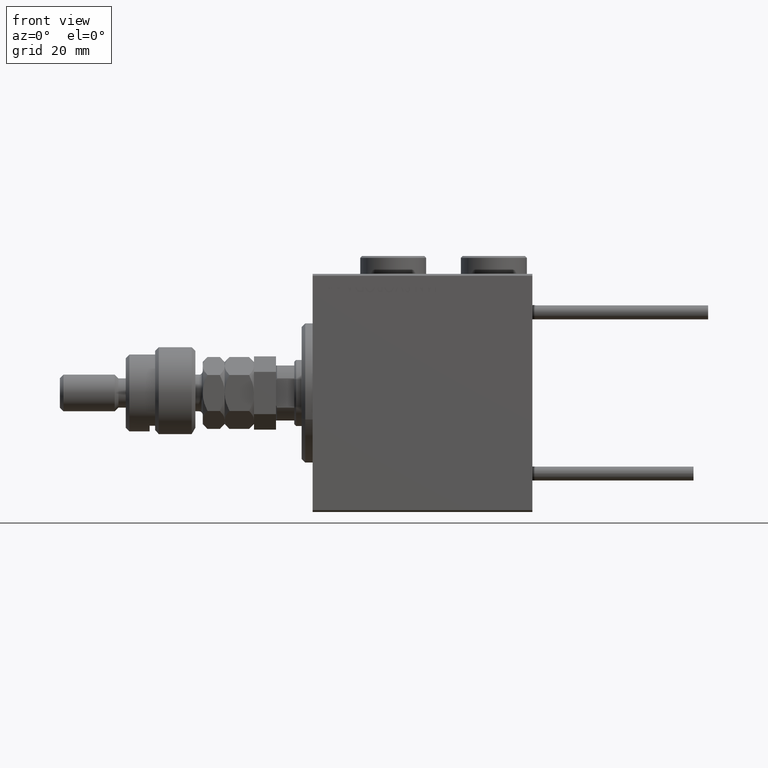
[diagram: clean part render]
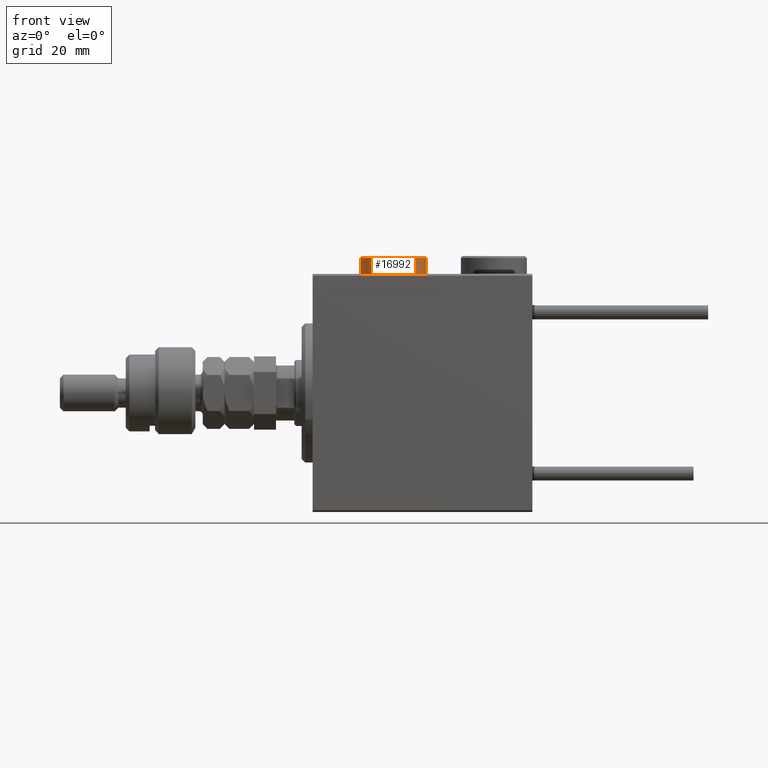
[diagram: same view with one face highlighted and labeled with its STEP entity id]
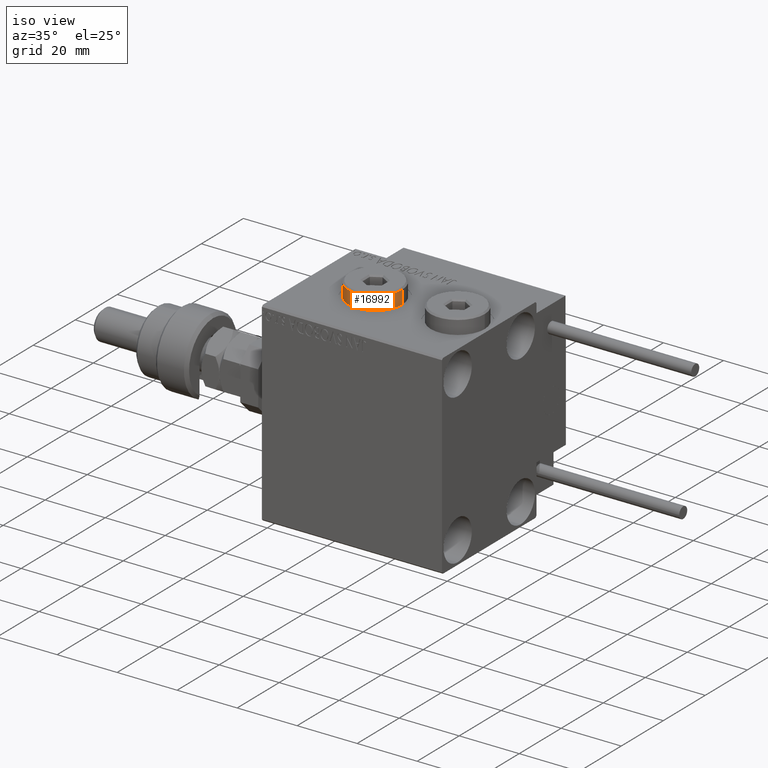
[diagram: same view with one face highlighted and labeled with its STEP entity id]
A machine part, front view. The second image highlights one B-rep face of the part: STEP entity #16992.
A second angle (iso view) of the same face is appended — the face is thin or edge-on in the first view.
In plain terms, the highlighted cylindrical surface (edge-blend (fillet) strip) has radius 9 mm, axis along (-0, -0, -1).
Its self-contained STEP definition (entity closure, byte-faithful):
#235 = EDGE_CURVE ( 'NONE', #34763, #1009, #22693, .T. ) ;
#1009 = VERTEX_POINT ( 'NONE', #27879 ) ;
#3549 = DIRECTION ( 'NONE',  ( 1.000000000000000000, 0.000000000000000000, 0.000000000000000000 ) ) ;
#7491 = LINE ( 'NONE', #7755, #10532 ) ;
#7755 = CARTESIAN_POINT ( 'NONE',  ( -9.000000000000001776, 0.000000000000000000, 5.000000000000000000 ) ) ;
#9200 = AXIS2_PLACEMENT_3D ( 'NONE', #37571, #45572, #32918 ) ;
#10532 = VECTOR ( 'NONE', #35767, 1000.000000000000000 ) ;
#12711 = EDGE_LOOP ( 'NONE', ( #41212, #51748, #16448, #30434 ) ) ;
#13055 = FACE_OUTER_BOUND ( 'NONE', #12711, .T. ) ;
#13323 = DIRECTION ( 'NONE',  ( -1.000000000000000000, 0.000000000000000000, 0.000000000000000000 ) ) ;
#16448 = ORIENTED_EDGE ( 'NONE', *, *, #40122, .T. ) ;
#16992 = ADVANCED_FACE ( 'NONE', ( #13055 ), #29827, .T. ) ;
#17392 = EDGE_CURVE ( 'NONE', #34763, #22337, #23338, .T. ) ;
#19163 = VECTOR ( 'NONE', #39818, 1000.000000000000000 ) ;
#19203 = CARTESIAN_POINT ( 'NONE',  ( 9.000000000000001776, 1.102182119232617911E-15, 5.000000000000000000 ) ) ;
#19259 = CARTESIAN_POINT ( 'NONE',  ( 9.000000000000001776, 1.102182119232617911E-15, 0.000000000000000000 ) ) ;
#22337 = VERTEX_POINT ( 'NONE', #19259 ) ;
#22693 = CIRCLE ( 'NONE', #26204, 9.000000000000001776 ) ;
#23140 = CARTESIAN_POINT ( 'NONE',  ( 9.000000000000001776, 1.102182119232617911E-15, 4.500000000000006217 ) ) ;
#23338 = LINE ( 'NONE', #19203, #19163 ) ;
#26204 = AXIS2_PLACEMENT_3D ( 'NONE', #36238, #32124, #3549 ) ;
#27879 = CARTESIAN_POINT ( 'NONE',  ( -9.000000000000001776, 0.000000000000000000, 4.500000000000006217 ) ) ;
#29827 = CYLINDRICAL_SURFACE ( 'NONE', #49913, 9.000000000000001776 ) ;
#30434 = ORIENTED_EDGE ( 'NONE', *, *, #53705, .T. ) ;
#31749 = CARTESIAN_POINT ( 'NONE',  ( -9.000000000000001776, 0.000000000000000000, 0.000000000000000000 ) ) ;
#32124 = DIRECTION ( 'NONE',  ( 0.000000000000000000, 0.000000000000000000, -1.000000000000000000 ) ) ;
#32918 = DIRECTION ( 'NONE',  ( 1.000000000000000000, 0.000000000000000000, 0.000000000000000000 ) ) ;
#34763 = VERTEX_POINT ( 'NONE', #23140 ) ;
#35767 = DIRECTION ( 'NONE',  ( -0.000000000000000000, -0.000000000000000000, -1.000000000000000000 ) ) ;
#36238 = CARTESIAN_POINT ( 'NONE',  ( 0.000000000000000000, 0.000000000000000000, 4.500000000000006217 ) ) ;
#37571 = CARTESIAN_POINT ( 'NONE',  ( 0.000000000000000000, 0.000000000000000000, 0.000000000000000000 ) ) ;
#39818 = DIRECTION ( 'NONE',  ( -0.000000000000000000, -0.000000000000000000, -1.000000000000000000 ) ) ;
#40122 = EDGE_CURVE ( 'NONE', #1009, #52885, #7491, .T. ) ;
#41212 = ORIENTED_EDGE ( 'NONE', *, *, #17392, .F. ) ;
#42460 = DIRECTION ( 'NONE',  ( -0.000000000000000000, -0.000000000000000000, -1.000000000000000000 ) ) ;
#45572 = DIRECTION ( 'NONE',  ( 0.000000000000000000, 0.000000000000000000, 1.000000000000000000 ) ) ;
#46104 = CIRCLE ( 'NONE', #9200, 9.000000000000001776 ) ;
#46622 = CARTESIAN_POINT ( 'NONE',  ( 0.000000000000000000, 0.000000000000000000, 5.000000000000000000 ) ) ;
#49913 = AXIS2_PLACEMENT_3D ( 'NONE', #46622, #42460, #13323 ) ;
#51748 = ORIENTED_EDGE ( 'NONE', *, *, #235, .T. ) ;
#52885 = VERTEX_POINT ( 'NONE', #31749 ) ;
#53705 = EDGE_CURVE ( 'NONE', #52885, #22337, #46104, .T. ) ;